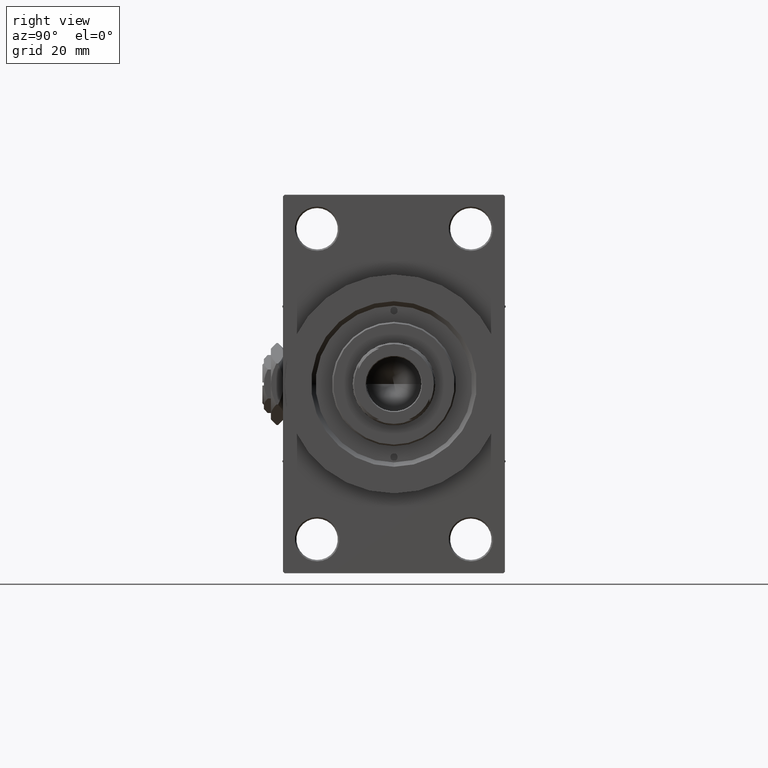
[diagram: clean part render]
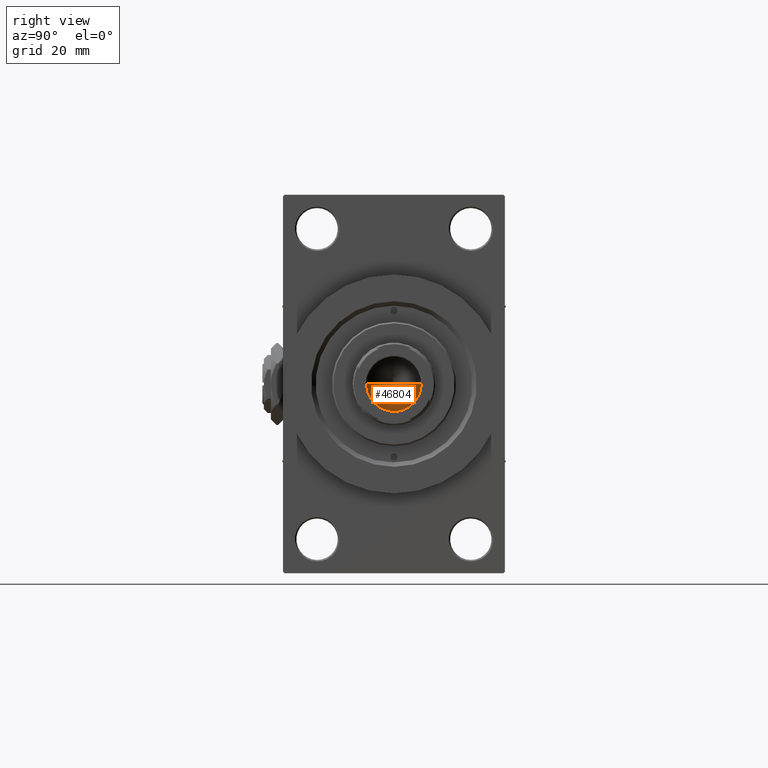
[diagram: same view with one face highlighted and labeled with its STEP entity id]
A machine part, right view. The second image highlights one B-rep face of the part: STEP entity #46804.
In plain terms, the highlighted conical surface has half-angle 59 deg.
Its self-contained STEP definition (entity closure, byte-faithful):
#18 = VECTOR ( 'NONE', #11024, 1000.000000000000000 ) ;
#144 = EDGE_LOOP ( 'NONE', ( #28147, #5322, #43866 ) ) ;
#513 = DIRECTION ( 'NONE',  ( -0.000000000000000000, -0.000000000000000000, 1.000000000000000000 ) ) ;
#952 = EDGE_CURVE ( 'NONE', #43350, #1136, #15008, .T. ) ;
#1136 = VERTEX_POINT ( 'NONE', #38436 ) ;
#2301 = AXIS2_PLACEMENT_3D ( 'NONE', #10384, #6632, #2865 ) ;
#2865 = DIRECTION ( 'NONE',  ( 1.000000000000000000, 0.000000000000000000, 0.000000000000000000 ) ) ;
#4684 = EDGE_CURVE ( 'NONE', #43350, #12648, #13467, .T. ) ;
#5322 = ORIENTED_EDGE ( 'NONE', *, *, #952, .T. ) ;
#5700 = CARTESIAN_POINT ( 'NONE',  ( -9.249999999999992895, 1.132798289211300712E-15, 107.0000000000000142 ) ) ;
#6632 = DIRECTION ( 'NONE',  ( -0.000000000000000000, -0.000000000000000000, 1.000000000000000000 ) ) ;
#9476 = DIRECTION ( 'NONE',  ( -0.8571673007021117785, 1.049727191138617956E-16, 0.5150380749100550437 ) ) ;
#10384 = CARTESIAN_POINT ( 'NONE',  ( 0.000000000000000000, 0.000000000000000000, 107.0000000000000142 ) ) ;
#11024 = DIRECTION ( 'NONE',  ( 0.8571673007021117785, 0.000000000000000000, 0.5150380749100550437 ) ) ;
#12648 = VERTEX_POINT ( 'NONE', #5700 ) ;
#13467 = LINE ( 'NONE', #32224, #32880 ) ;
#15008 = LINE ( 'NONE', #45298, #18 ) ;
#25438 = CONICAL_SURFACE ( 'NONE', #2301, 9.249999999999992895, 1.029744258676653423 ) ;
#26295 = CIRCLE ( 'NONE', #28687, 9.249999999999992895 ) ;
#26305 = CARTESIAN_POINT ( 'NONE',  ( 0.000000000000000000, 0.000000000000000000, 107.0000000000000142 ) ) ;
#28147 = ORIENTED_EDGE ( 'NONE', *, *, #4684, .F. ) ;
#28687 = AXIS2_PLACEMENT_3D ( 'NONE', #26305, #513, #30555 ) ;
#29627 = FACE_OUTER_BOUND ( 'NONE', #144, .T. ) ;
#30555 = DIRECTION ( 'NONE',  ( 1.000000000000000000, 0.000000000000000000, 0.000000000000000000 ) ) ;
#32224 = CARTESIAN_POINT ( 'NONE',  ( -9.249999999999992895, 1.132798289211300712E-15, 107.0000000000000142 ) ) ;
#32880 = VECTOR ( 'NONE', #9476, 1000.000000000000000 ) ;
#35647 = CARTESIAN_POINT ( 'NONE',  ( -9.769621978240258809E-15, 0.000000000000000000, 101.4420392739950785 ) ) ;
#38436 = CARTESIAN_POINT ( 'NONE',  ( 9.249999999999992895, 0.000000000000000000, 107.0000000000000142 ) ) ;
#43350 = VERTEX_POINT ( 'NONE', #35647 ) ;
#43866 = ORIENTED_EDGE ( 'NONE', *, *, #48039, .T. ) ;
#45298 = CARTESIAN_POINT ( 'NONE',  ( 9.249999999999992895, 0.000000000000000000, 107.0000000000000142 ) ) ;
#46804 = ADVANCED_FACE ( 'NONE', ( #29627 ), #25438, .F. ) ;
#48039 = EDGE_CURVE ( 'NONE', #1136, #12648, #26295, .T. ) ;